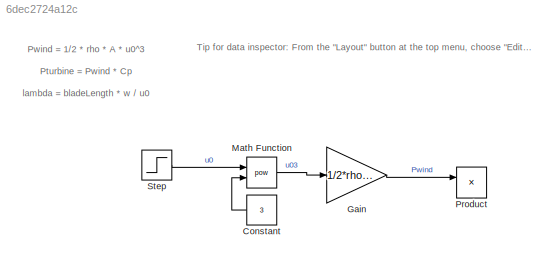
MODEL slx_6dec2724a12c
KIND model
CONFIG AbsTol = auto
CONFIG EnableMultiTasking = off
CONFIG FixedStep = 0.5
CONFIG MaxStep = simu.maxStepSize
CONFIG MinStep = auto
CONFIG RelTol = 1e-3
CONFIG SampleTimeConstraint = Unconstrained
CONFIG SolverName = ode45
CONFIG StartTime = 0.0
CONFIG StopTime = simu.endTime
BLOCK [Constant] Constant
  Value = 3
BLOCK [Gain] Gain
  Gain = 1/2*rho*A
BLOCK [Math] Math Function
  Operator = pow
  Ports = [2, 1]
BLOCK [Product] Product
  Ports = [2, 1]
BLOCK [Step] Step
  After = 15
  Before = 5
  SampleTime = 0
ANNOTATION (root): Pwind = 1/2 * rho * A * u0^3 Pturbine = Pwind * Cp lambda = bladeLength * w / u0
ANNOTATION (root): Tip for data inspector: From the "Layout" button at the top menu, choose "Edit View" from the bottom, and drag "Time Plot" to the desired viewing position.
LINE Constant:1 -> Math Function:2
LINE Gain:1 -> Product:1
LINE Math Function:1 -> Gain:1
LINE Step:1 -> Math Function:1
